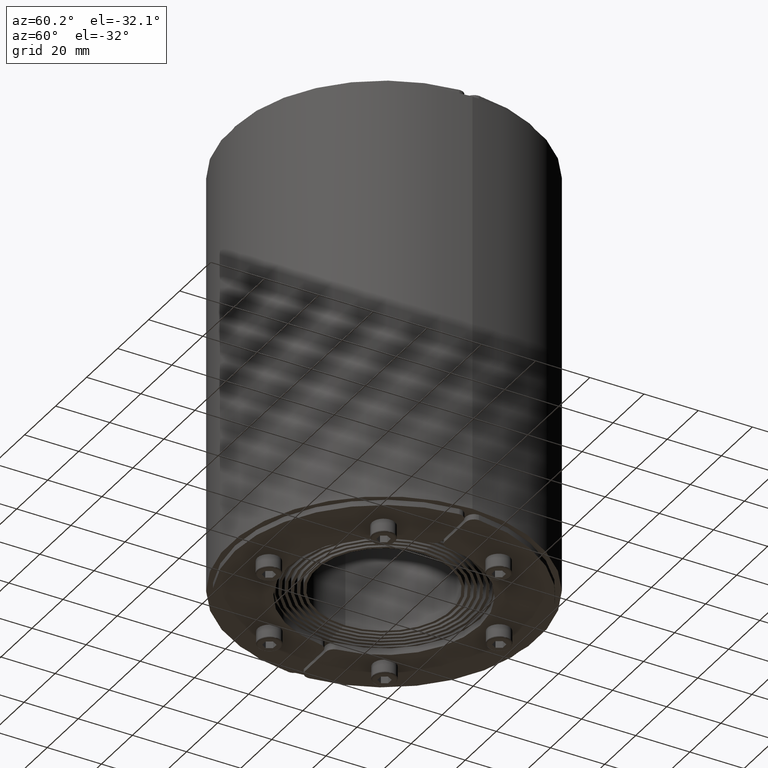
[diagram: clean part render]
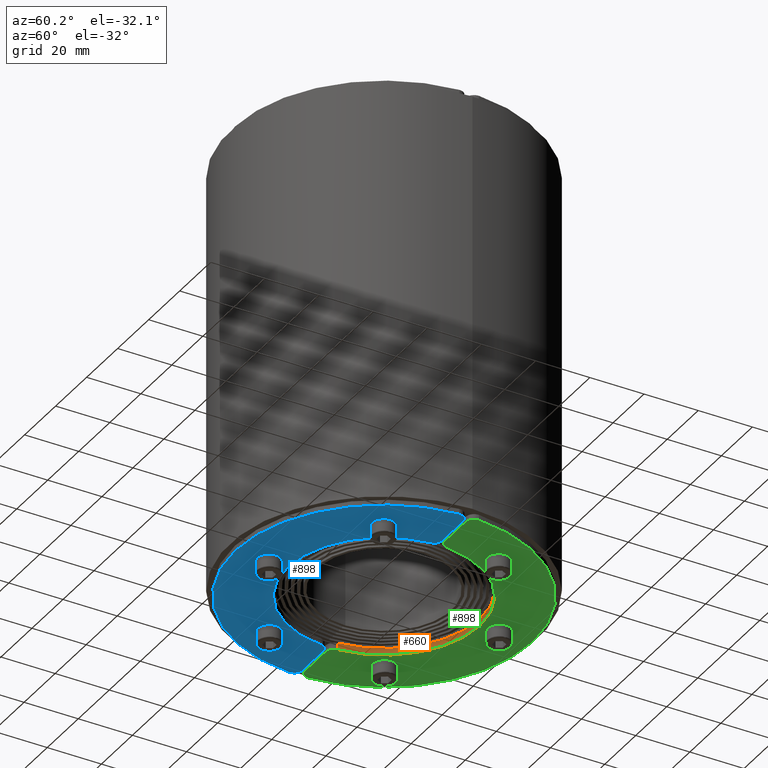
[diagram: same view with three faces highlighted in distinct colors, each labeled with its STEP entity id]
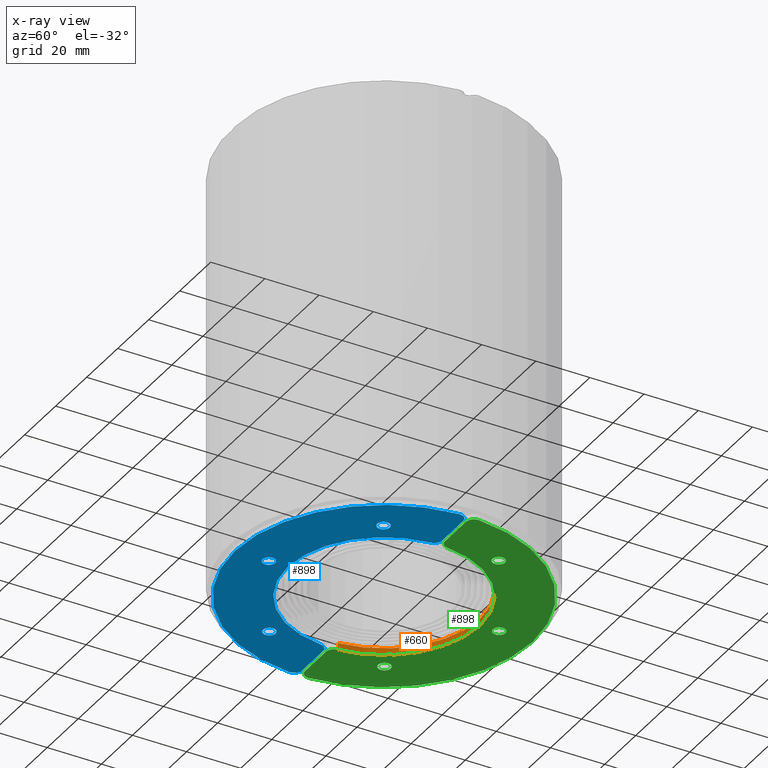
[diagram: x-ray of the same camera — body ghosted, the three highlighted faces saturated]
A machine part, auxiliary view with three faces highlighted in distinct colors.
The next image is the same camera in x-ray (body ghosted, the three faces saturated) — at least one of them is partly hidden behind the body in this view.
Their STEP definitions:

[orange] entity #660 — the highlighted cylindrical surface (partial cylindrical patch) has radius 35.5 mm, axis along (0, 0, -1).
#600=CARTESIAN_POINT('',(35.353001438970267,-24.522727272727337,1.250000000000000));
#601=VERTEX_POINT('',#600);
#609=CARTESIAN_POINT('',(35.353001438970267,-24.522727272727337,-1.250000000000000));
#610=VERTEX_POINT('',#609);
#611=CARTESIAN_POINT('',(35.353001438970267,-24.522727272727337,-1.250000000000000));
#612=DIRECTION('',(0.0,0.0,1.0));
#613=VECTOR('',#612,2.500000000000000);
#614=LINE('',#611,#613);
#615=EDGE_CURVE('',#610,#601,#614,.T.);
#628=CARTESIAN_POINT('',(4.547474E-013,-27.750000000000028,-1.250000000000000));
#629=DIRECTION('',(0.0,0.0,1.0));
#630=DIRECTION('',(1.0,0.0,0.0));
#631=AXIS2_PLACEMENT_3D('',#628,#629,#630);
#632=CYLINDRICAL_SURFACE('',#631,35.500000000000000);
#633=CARTESIAN_POINT('',(-35.353001438969606,-24.522727272727280,1.250000000000000));
#634=VERTEX_POINT('',#633);
#635=CARTESIAN_POINT('',(4.547474E-013,-27.750000000000028,1.250000000000000));
#636=DIRECTION('',(0.0,0.0,1.0));
#637=DIRECTION('',(1.0,0.0,0.0));
#638=AXIS2_PLACEMENT_3D('',#635,#636,#637);
#639=CIRCLE('',#638,35.500000000000000);
#640=EDGE_CURVE('',#601,#634,#639,.T.);
#641=ORIENTED_EDGE('',*,*,#640,.T.);
#642=CARTESIAN_POINT('',(-35.353001438969606,-24.522727272727280,-1.250000000000000));
#643=VERTEX_POINT('',#642);
#644=CARTESIAN_POINT('',(-35.353001438969606,-24.522727272727280,-1.250000000000000));
#645=DIRECTION('',(0.0,0.0,1.0));
#646=VECTOR('',#645,2.500000000000000);
#647=LINE('',#644,#646);
#648=EDGE_CURVE('',#643,#634,#647,.T.);
#649=ORIENTED_EDGE('',*,*,#648,.F.);
#650=CARTESIAN_POINT('',(4.547474E-013,-27.750000000000028,-1.250000000000000));
#651=DIRECTION('',(0.0,0.0,1.0));
#652=DIRECTION('',(1.0,0.0,0.0));
#653=AXIS2_PLACEMENT_3D('',#650,#651,#652);
#654=CIRCLE('',#653,35.500000000000000);
#655=EDGE_CURVE('',#610,#643,#654,.T.);
#656=ORIENTED_EDGE('',*,*,#655,.F.);
#657=ORIENTED_EDGE('',*,*,#615,.T.);
#658=EDGE_LOOP('',(#641,#649,#656,#657));
#659=FACE_OUTER_BOUND('',#658,.T.);
#660=ADVANCED_FACE('',(#659),#632,.F.);

[blue] entity #898 — the highlighted planar face has unit normal (0, 0, -1).
#352=CARTESIAN_POINT('',(-34.496679660838353,-6.499999999999574,1.250000000000000));
#353=VERTEX_POINT('',#352);
#369=CARTESIAN_POINT('',(-39.115479660838346,-6.499999999999574,1.250000000000000));
#370=VERTEX_POINT('',#369);
#377=CARTESIAN_POINT('',(-36.806079660838350,-6.499999999999574,1.250000000000000));
#378=DIRECTION('',(0.0,0.0,1.0));
#379=DIRECTION('',(1.0,0.0,0.0));
#380=AXIS2_PLACEMENT_3D('',#377,#378,#379);
#381=CIRCLE('',#380,2.309400000000000);
#382=EDGE_CURVE('',#370,#353,#381,.T.);
#394=CARTESIAN_POINT('',(2.309400000000455,14.749999999999972,1.250000000000000));
#395=VERTEX_POINT('',#394);
#411=CARTESIAN_POINT('',(-2.309399999999545,14.749999999999972,1.250000000000000));
#412=VERTEX_POINT('',#411);
#419=CARTESIAN_POINT('',(4.547474E-013,14.749999999999972,1.250000000000000));
#420=DIRECTION('',(0.0,0.0,1.0));
#421=DIRECTION('',(1.0,0.0,0.0));
#422=AXIS2_PLACEMENT_3D('',#419,#420,#421);
#423=CIRCLE('',#422,2.309400000000000);
#424=EDGE_CURVE('',#412,#395,#423,.T.);
#436=CARTESIAN_POINT('',(39.115479660838346,-6.499999999999574,1.250000000000000));
#437=VERTEX_POINT('',#436);
#453=CARTESIAN_POINT('',(34.496679660838353,-6.499999999999574,1.250000000000000));
#454=VERTEX_POINT('',#453);
#461=CARTESIAN_POINT('',(36.806079660838350,-6.499999999999574,1.250000000000000));
#462=DIRECTION('',(0.0,0.0,1.0));
#463=DIRECTION('',(1.0,0.0,0.0));
#464=AXIS2_PLACEMENT_3D('',#461,#462,#463);
#465=CIRCLE('',#464,2.309400000000000);
#466=EDGE_CURVE('',#454,#437,#465,.T.);
#478=CARTESIAN_POINT('',(54.882077830402977,-24.250000000000028,1.250000000000000));
#479=VERTEX_POINT('',#478);
#495=CARTESIAN_POINT('',(54.875274628311381,-24.048076923076991,1.250000000000000));
#496=VERTEX_POINT('',#495);
#503=CARTESIAN_POINT('',(51.882077830402977,-24.250000000000028,1.250000000000000));
#504=DIRECTION('',(0.0,0.0,-1.0));
#505=DIRECTION('',(1.0,0.0,0.0));
#506=AXIS2_PLACEMENT_3D('',#503,#504,#505);
#507=CIRCLE('',#506,3.0);
#508=EDGE_CURVE('',#496,#479,#507,.T.);
#518=CARTESIAN_POINT('',(-54.882077830402977,-24.250000000000028,1.250000000000000));
#519=VERTEX_POINT('',#518);
#528=CARTESIAN_POINT('',(-54.875274628310478,-24.048076923076991,1.250000000000000));
#529=VERTEX_POINT('',#528);
#530=CARTESIAN_POINT('',(-51.882077830402977,-24.250000000000028,1.250000000000000));
#531=DIRECTION('',(0.0,0.0,-1.0));
#532=DIRECTION('',(1.0,0.0,0.0));
#533=AXIS2_PLACEMENT_3D('',#530,#531,#532);
#534=CIRCLE('',#533,3.0);
#535=EDGE_CURVE('',#519,#529,#534,.T.);
#560=CARTESIAN_POINT('',(51.882077830402977,-27.250000000000028,1.250000000000000));
#561=VERTEX_POINT('',#560);
#562=CARTESIAN_POINT('',(38.340579025361421,-27.250000000000028,1.250000000000000));
#563=VERTEX_POINT('',#562);
#564=CARTESIAN_POINT('',(51.882077830402977,-27.250000000000028,1.250000000000000));
#565=DIRECTION('',(-1.0,0.0,0.0));
#566=VECTOR('',#565,13.541498805041556);
#567=LINE('',#564,#566);
#568=EDGE_CURVE('',#561,#563,#567,.T.);
#600=CARTESIAN_POINT('',(35.353001438970267,-24.522727272727337,1.250000000000000));
#601=VERTEX_POINT('',#600);
#602=CARTESIAN_POINT('',(38.340579025361421,-24.250000000000028,1.250000000000000));
#603=DIRECTION('',(0.0,0.0,-1.0));
#604=DIRECTION('',(1.0,0.0,0.0));
#605=AXIS2_PLACEMENT_3D('',#602,#603,#604);
#606=CIRCLE('',#605,3.0);
#607=EDGE_CURVE('',#563,#601,#606,.T.);
#633=CARTESIAN_POINT('',(-35.353001438969606,-24.522727272727280,1.250000000000000));
#634=VERTEX_POINT('',#633);
#635=CARTESIAN_POINT('',(4.547474E-013,-27.750000000000028,1.250000000000000));
#636=DIRECTION('',(0.0,0.0,1.0));
#637=DIRECTION('',(1.0,0.0,0.0));
#638=AXIS2_PLACEMENT_3D('',#635,#636,#637);
#639=CIRCLE('',#638,35.500000000000000);
#640=EDGE_CURVE('',#601,#634,#639,.T.);
#666=CARTESIAN_POINT('',(-38.340579025361421,-27.250000000000028,1.250000000000000));
#667=VERTEX_POINT('',#666);
#668=CARTESIAN_POINT('',(-38.340579025361421,-24.250000000000028,1.250000000000000));
#669=DIRECTION('',(0.0,0.0,-1.0));
#670=DIRECTION('',(1.0,0.0,0.0));
#671=AXIS2_PLACEMENT_3D('',#668,#669,#670);
#672=CIRCLE('',#671,3.0);
#673=EDGE_CURVE('',#634,#667,#672,.T.);
#699=CARTESIAN_POINT('',(-51.882077830402977,-27.250000000000028,1.250000000000000));
#700=VERTEX_POINT('',#699);
#701=CARTESIAN_POINT('',(-38.340579025361421,-27.250000000000028,1.250000000000000));
#702=DIRECTION('',(-1.0,0.0,0.0));
#703=VECTOR('',#702,13.541498805041556);
#704=LINE('',#701,#703);
#705=EDGE_CURVE('',#667,#700,#704,.T.);
#739=CARTESIAN_POINT('',(-51.882077830402977,-24.250000000000028,1.250000000000000));
#740=DIRECTION('',(0.0,0.0,-1.0));
#741=DIRECTION('',(1.0,0.0,0.0));
#742=AXIS2_PLACEMENT_3D('',#739,#740,#741);
#743=CIRCLE('',#742,3.0);
#744=EDGE_CURVE('',#700,#519,#743,.T.);
#754=CARTESIAN_POINT('',(4.547474E-013,-27.750000000000028,1.250000000000000));
#755=DIRECTION('',(0.0,0.0,-1.0));
#756=DIRECTION('',(1.0,0.0,0.0));
#757=AXIS2_PLACEMENT_3D('',#754,#755,#756);
#758=CIRCLE('',#757,55.000000000000078);
#759=EDGE_CURVE('',#529,#496,#758,.T.);
#779=CARTESIAN_POINT('',(51.882077830402977,-24.250000000000028,1.250000000000000));
#780=DIRECTION('',(0.0,0.0,-1.0));
#781=DIRECTION('',(1.0,0.0,0.0));
#782=AXIS2_PLACEMENT_3D('',#779,#780,#781);
#783=CIRCLE('',#782,3.0);
#784=EDGE_CURVE('',#479,#561,#783,.T.);
#803=CARTESIAN_POINT('',(36.806079660838350,-6.499999999999574,1.250000000000000));
#804=DIRECTION('',(0.0,0.0,1.0));
#805=DIRECTION('',(1.0,0.0,0.0));
#806=AXIS2_PLACEMENT_3D('',#803,#804,#805);
#807=CIRCLE('',#806,2.309400000000000);
#808=EDGE_CURVE('',#437,#454,#807,.T.);
#827=CARTESIAN_POINT('',(4.547474E-013,14.749999999999972,1.250000000000000));
#828=DIRECTION('',(0.0,0.0,1.0));
#829=DIRECTION('',(1.0,0.0,0.0));
#830=AXIS2_PLACEMENT_3D('',#827,#828,#829);
#831=CIRCLE('',#830,2.309400000000000);
#832=EDGE_CURVE('',#395,#412,#831,.T.);
#851=CARTESIAN_POINT('',(-36.806079660838350,-6.499999999999574,1.250000000000000));
#852=DIRECTION('',(0.0,0.0,1.0));
#853=DIRECTION('',(1.0,0.0,0.0));
#854=AXIS2_PLACEMENT_3D('',#851,#852,#853);
#855=CIRCLE('',#854,2.309400000000000);
#856=EDGE_CURVE('',#353,#370,#855,.T.);
#869=CARTESIAN_POINT('',(3.659295E-013,-2.952719083509891,1.250000000000000));
#870=DIRECTION('',(0.0,0.0,1.0));
#871=DIRECTION('',(1.0,0.0,0.0));
#872=AXIS2_PLACEMENT_3D('',#869,#870,#871);
#873=PLANE('',#872);
#874=ORIENTED_EDGE('',*,*,#568,.F.);
#875=ORIENTED_EDGE('',*,*,#784,.F.);
#876=ORIENTED_EDGE('',*,*,#508,.F.);
#877=ORIENTED_EDGE('',*,*,#759,.F.);
#878=ORIENTED_EDGE('',*,*,#535,.F.);
#879=ORIENTED_EDGE('',*,*,#744,.F.);
#880=ORIENTED_EDGE('',*,*,#705,.F.);
#881=ORIENTED_EDGE('',*,*,#673,.F.);
#882=ORIENTED_EDGE('',*,*,#640,.F.);
#883=ORIENTED_EDGE('',*,*,#607,.F.);
#884=EDGE_LOOP('',(#874,#875,#876,#877,#878,#879,#880,#881,#882,#883));
#885=FACE_OUTER_BOUND('',#884,.T.);
#886=ORIENTED_EDGE('',*,*,#856,.F.);
#887=ORIENTED_EDGE('',*,*,#382,.F.);
#888=EDGE_LOOP('',(#886,#887));
#889=FACE_BOUND('',#888,.T.);
#890=ORIENTED_EDGE('',*,*,#832,.F.);
#891=ORIENTED_EDGE('',*,*,#424,.F.);
#892=EDGE_LOOP('',(#890,#891));
#893=FACE_BOUND('',#892,.T.);
#894=ORIENTED_EDGE('',*,*,#808,.F.);
#895=ORIENTED_EDGE('',*,*,#466,.F.);
#896=EDGE_LOOP('',(#894,#895));
#897=FACE_BOUND('',#896,.T.);
#898=ADVANCED_FACE('',(#885,#889,#893,#897),#873,.T.);

[green] entity #898 — the highlighted planar face has unit normal (0, 0, -1).
#352=CARTESIAN_POINT('',(-34.496679660838353,-6.499999999999574,1.250000000000000));
#353=VERTEX_POINT('',#352);
#369=CARTESIAN_POINT('',(-39.115479660838346,-6.499999999999574,1.250000000000000));
#370=VERTEX_POINT('',#369);
#377=CARTESIAN_POINT('',(-36.806079660838350,-6.499999999999574,1.250000000000000));
#378=DIRECTION('',(0.0,0.0,1.0));
#379=DIRECTION('',(1.0,0.0,0.0));
#380=AXIS2_PLACEMENT_3D('',#377,#378,#379);
#381=CIRCLE('',#380,2.309400000000000);
#382=EDGE_CURVE('',#370,#353,#381,.T.);
#394=CARTESIAN_POINT('',(2.309400000000455,14.749999999999972,1.250000000000000));
#395=VERTEX_POINT('',#394);
#411=CARTESIAN_POINT('',(-2.309399999999545,14.749999999999972,1.250000000000000));
#412=VERTEX_POINT('',#411);
#419=CARTESIAN_POINT('',(4.547474E-013,14.749999999999972,1.250000000000000));
#420=DIRECTION('',(0.0,0.0,1.0));
#421=DIRECTION('',(1.0,0.0,0.0));
#422=AXIS2_PLACEMENT_3D('',#419,#420,#421);
#423=CIRCLE('',#422,2.309400000000000);
#424=EDGE_CURVE('',#412,#395,#423,.T.);
#436=CARTESIAN_POINT('',(39.115479660838346,-6.499999999999574,1.250000000000000));
#437=VERTEX_POINT('',#436);
#453=CARTESIAN_POINT('',(34.496679660838353,-6.499999999999574,1.250000000000000));
#454=VERTEX_POINT('',#453);
#461=CARTESIAN_POINT('',(36.806079660838350,-6.499999999999574,1.250000000000000));
#462=DIRECTION('',(0.0,0.0,1.0));
#463=DIRECTION('',(1.0,0.0,0.0));
#464=AXIS2_PLACEMENT_3D('',#461,#462,#463);
#465=CIRCLE('',#464,2.309400000000000);
#466=EDGE_CURVE('',#454,#437,#465,.T.);
#478=CARTESIAN_POINT('',(54.882077830402977,-24.250000000000028,1.250000000000000));
#479=VERTEX_POINT('',#478);
#495=CARTESIAN_POINT('',(54.875274628311381,-24.048076923076991,1.250000000000000));
#496=VERTEX_POINT('',#495);
#503=CARTESIAN_POINT('',(51.882077830402977,-24.250000000000028,1.250000000000000));
#504=DIRECTION('',(0.0,0.0,-1.0));
#505=DIRECTION('',(1.0,0.0,0.0));
#506=AXIS2_PLACEMENT_3D('',#503,#504,#505);
#507=CIRCLE('',#506,3.0);
#508=EDGE_CURVE('',#496,#479,#507,.T.);
#518=CARTESIAN_POINT('',(-54.882077830402977,-24.250000000000028,1.250000000000000));
#519=VERTEX_POINT('',#518);
#528=CARTESIAN_POINT('',(-54.875274628310478,-24.048076923076991,1.250000000000000));
#529=VERTEX_POINT('',#528);
#530=CARTESIAN_POINT('',(-51.882077830402977,-24.250000000000028,1.250000000000000));
#531=DIRECTION('',(0.0,0.0,-1.0));
#532=DIRECTION('',(1.0,0.0,0.0));
#533=AXIS2_PLACEMENT_3D('',#530,#531,#532);
#534=CIRCLE('',#533,3.0);
#535=EDGE_CURVE('',#519,#529,#534,.T.);
#560=CARTESIAN_POINT('',(51.882077830402977,-27.250000000000028,1.250000000000000));
#561=VERTEX_POINT('',#560);
#562=CARTESIAN_POINT('',(38.340579025361421,-27.250000000000028,1.250000000000000));
#563=VERTEX_POINT('',#562);
#564=CARTESIAN_POINT('',(51.882077830402977,-27.250000000000028,1.250000000000000));
#565=DIRECTION('',(-1.0,0.0,0.0));
#566=VECTOR('',#565,13.541498805041556);
#567=LINE('',#564,#566);
#568=EDGE_CURVE('',#561,#563,#567,.T.);
#600=CARTESIAN_POINT('',(35.353001438970267,-24.522727272727337,1.250000000000000));
#601=VERTEX_POINT('',#600);
#602=CARTESIAN_POINT('',(38.340579025361421,-24.250000000000028,1.250000000000000));
#603=DIRECTION('',(0.0,0.0,-1.0));
#604=DIRECTION('',(1.0,0.0,0.0));
#605=AXIS2_PLACEMENT_3D('',#602,#603,#604);
#606=CIRCLE('',#605,3.0);
#607=EDGE_CURVE('',#563,#601,#606,.T.);
#633=CARTESIAN_POINT('',(-35.353001438969606,-24.522727272727280,1.250000000000000));
#634=VERTEX_POINT('',#633);
#635=CARTESIAN_POINT('',(4.547474E-013,-27.750000000000028,1.250000000000000));
#636=DIRECTION('',(0.0,0.0,1.0));
#637=DIRECTION('',(1.0,0.0,0.0));
#638=AXIS2_PLACEMENT_3D('',#635,#636,#637);
#639=CIRCLE('',#638,35.500000000000000);
#640=EDGE_CURVE('',#601,#634,#639,.T.);
#666=CARTESIAN_POINT('',(-38.340579025361421,-27.250000000000028,1.250000000000000));
#667=VERTEX_POINT('',#666);
#668=CARTESIAN_POINT('',(-38.340579025361421,-24.250000000000028,1.250000000000000));
#669=DIRECTION('',(0.0,0.0,-1.0));
#670=DIRECTION('',(1.0,0.0,0.0));
#671=AXIS2_PLACEMENT_3D('',#668,#669,#670);
#672=CIRCLE('',#671,3.0);
#673=EDGE_CURVE('',#634,#667,#672,.T.);
#699=CARTESIAN_POINT('',(-51.882077830402977,-27.250000000000028,1.250000000000000));
#700=VERTEX_POINT('',#699);
#701=CARTESIAN_POINT('',(-38.340579025361421,-27.250000000000028,1.250000000000000));
#702=DIRECTION('',(-1.0,0.0,0.0));
#703=VECTOR('',#702,13.541498805041556);
#704=LINE('',#701,#703);
#705=EDGE_CURVE('',#667,#700,#704,.T.);
#739=CARTESIAN_POINT('',(-51.882077830402977,-24.250000000000028,1.250000000000000));
#740=DIRECTION('',(0.0,0.0,-1.0));
#741=DIRECTION('',(1.0,0.0,0.0));
#742=AXIS2_PLACEMENT_3D('',#739,#740,#741);
#743=CIRCLE('',#742,3.0);
#744=EDGE_CURVE('',#700,#519,#743,.T.);
#754=CARTESIAN_POINT('',(4.547474E-013,-27.750000000000028,1.250000000000000));
#755=DIRECTION('',(0.0,0.0,-1.0));
#756=DIRECTION('',(1.0,0.0,0.0));
#757=AXIS2_PLACEMENT_3D('',#754,#755,#756);
#758=CIRCLE('',#757,55.000000000000078);
#759=EDGE_CURVE('',#529,#496,#758,.T.);
#779=CARTESIAN_POINT('',(51.882077830402977,-24.250000000000028,1.250000000000000));
#780=DIRECTION('',(0.0,0.0,-1.0));
#781=DIRECTION('',(1.0,0.0,0.0));
#782=AXIS2_PLACEMENT_3D('',#779,#780,#781);
#783=CIRCLE('',#782,3.0);
#784=EDGE_CURVE('',#479,#561,#783,.T.);
#803=CARTESIAN_POINT('',(36.806079660838350,-6.499999999999574,1.250000000000000));
#804=DIRECTION('',(0.0,0.0,1.0));
#805=DIRECTION('',(1.0,0.0,0.0));
#806=AXIS2_PLACEMENT_3D('',#803,#804,#805);
#807=CIRCLE('',#806,2.309400000000000);
#808=EDGE_CURVE('',#437,#454,#807,.T.);
#827=CARTESIAN_POINT('',(4.547474E-013,14.749999999999972,1.250000000000000));
#828=DIRECTION('',(0.0,0.0,1.0));
#829=DIRECTION('',(1.0,0.0,0.0));
#830=AXIS2_PLACEMENT_3D('',#827,#828,#829);
#831=CIRCLE('',#830,2.309400000000000);
#832=EDGE_CURVE('',#395,#412,#831,.T.);
#851=CARTESIAN_POINT('',(-36.806079660838350,-6.499999999999574,1.250000000000000));
#852=DIRECTION('',(0.0,0.0,1.0));
#853=DIRECTION('',(1.0,0.0,0.0));
#854=AXIS2_PLACEMENT_3D('',#851,#852,#853);
#855=CIRCLE('',#854,2.309400000000000);
#856=EDGE_CURVE('',#353,#370,#855,.T.);
#869=CARTESIAN_POINT('',(3.659295E-013,-2.952719083509891,1.250000000000000));
#870=DIRECTION('',(0.0,0.0,1.0));
#871=DIRECTION('',(1.0,0.0,0.0));
#872=AXIS2_PLACEMENT_3D('',#869,#870,#871);
#873=PLANE('',#872);
#874=ORIENTED_EDGE('',*,*,#568,.F.);
#875=ORIENTED_EDGE('',*,*,#784,.F.);
#876=ORIENTED_EDGE('',*,*,#508,.F.);
#877=ORIENTED_EDGE('',*,*,#759,.F.);
#878=ORIENTED_EDGE('',*,*,#535,.F.);
#879=ORIENTED_EDGE('',*,*,#744,.F.);
#880=ORIENTED_EDGE('',*,*,#705,.F.);
#881=ORIENTED_EDGE('',*,*,#673,.F.);
#882=ORIENTED_EDGE('',*,*,#640,.F.);
#883=ORIENTED_EDGE('',*,*,#607,.F.);
#884=EDGE_LOOP('',(#874,#875,#876,#877,#878,#879,#880,#881,#882,#883));
#885=FACE_OUTER_BOUND('',#884,.T.);
#886=ORIENTED_EDGE('',*,*,#856,.F.);
#887=ORIENTED_EDGE('',*,*,#382,.F.);
#888=EDGE_LOOP('',(#886,#887));
#889=FACE_BOUND('',#888,.T.);
#890=ORIENTED_EDGE('',*,*,#832,.F.);
#891=ORIENTED_EDGE('',*,*,#424,.F.);
#892=EDGE_LOOP('',(#890,#891));
#893=FACE_BOUND('',#892,.T.);
#894=ORIENTED_EDGE('',*,*,#808,.F.);
#895=ORIENTED_EDGE('',*,*,#466,.F.);
#896=EDGE_LOOP('',(#894,#895));
#897=FACE_BOUND('',#896,.T.);
#898=ADVANCED_FACE('',(#885,#889,#893,#897),#873,.T.);